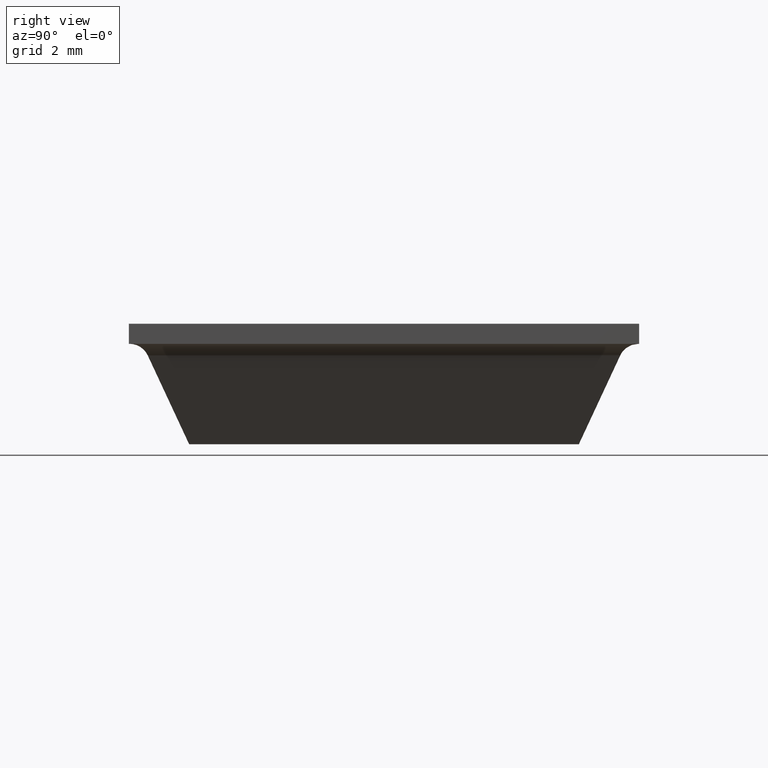
[diagram: clean part render]
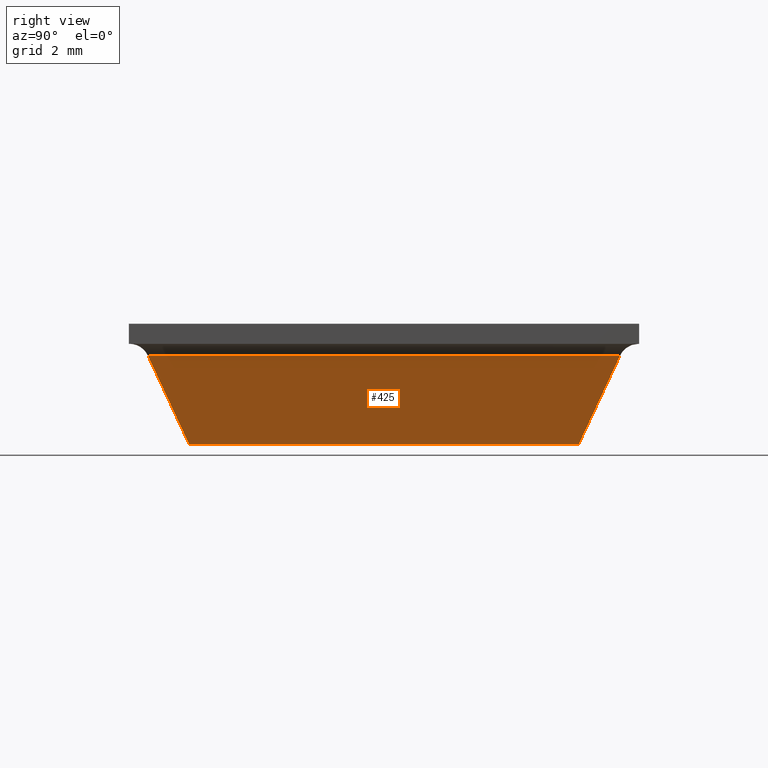
[diagram: same view with one face highlighted and labeled with its STEP entity id]
A machine part, right view. The second image highlights one B-rep face of the part: STEP entity #425.
In plain terms, the highlighted face is a freeform B-spline surface patch.
Its self-contained STEP definition (entity closure, byte-faithful):
#121=CARTESIAN_POINT('',(5.881150035810720,5.881150035810800,2.211309076796510));
#122=VERTEX_POINT('',#121);
#164=CARTESIAN_POINT('',(5.881150035810800,-5.881150035810720,2.211309076796510));
#165=VERTEX_POINT('',#164);
#216=CARTESIAN_POINT('',(5.881150035810720,5.881150035810800,2.211309076796510));
#217=CARTESIAN_POINT('',(5.881150035810800,-5.881150035810720,2.211309076796510));
#218=QUASI_UNIFORM_CURVE('',1,(#216,#217),.UNSPECIFIED.,.F.,.U.);
#219=EDGE_CURVE('',#122,#165,#218,.T.);
#229=CARTESIAN_POINT('',(4.850000000000001,-4.850000000000001,0.0));
#230=VERTEX_POINT('',#229);
#231=CARTESIAN_POINT('',(5.881150035810800,-5.881150035810720,2.211309076796510));
#232=CARTESIAN_POINT('',(4.850000000000001,-4.850000000000001,0.0));
#233=QUASI_UNIFORM_CURVE('',1,(#231,#232),.UNSPECIFIED.,.F.,.U.);
#234=EDGE_CURVE('',#165,#230,#233,.T.);
#379=CARTESIAN_POINT('',(4.850000000000001,4.850000000000001,0.0));
#380=VERTEX_POINT('',#379);
#381=CARTESIAN_POINT('',(5.881150035810720,5.881150035810800,2.211309076796510));
#382=CARTESIAN_POINT('',(4.850000000000001,4.850000000000001,0.0));
#383=QUASI_UNIFORM_CURVE('',1,(#381,#382),.UNSPECIFIED.,.F.,.U.);
#384=EDGE_CURVE('',#122,#380,#383,.T.);
#410=CARTESIAN_POINT('',(5.932656065218262,-6.468677122422708,2.321764147720240));
#411=CARTESIAN_POINT('',(4.798494025907729,-6.468677122422708,-0.110454952299864));
#412=CARTESIAN_POINT('',(5.932656065218263,6.468677227585945,2.321764147720240));
#413=CARTESIAN_POINT('',(4.798494025907729,6.468677227585945,-0.110454952299864));
#414=B_SPLINE_SURFACE_WITH_KNOTS('',1,1,((#410,#412),(#411,#413)),.UNSPECIFIED.,.F.,.F.,.U.,(2,2),(2,2),(0.0,2.683656699713217),(0.0,12.937354350008651),.UNSPECIFIED.);
#415=ORIENTED_EDGE('',*,*,#384,.F.);
#416=ORIENTED_EDGE('',*,*,#219,.T.);
#417=ORIENTED_EDGE('',*,*,#234,.T.);
#418=CARTESIAN_POINT('',(4.850000000000001,4.850000000000001,0.0));
#419=CARTESIAN_POINT('',(4.850000000000001,-4.850000000000001,0.0));
#420=QUASI_UNIFORM_CURVE('',1,(#418,#419),.UNSPECIFIED.,.F.,.U.);
#421=EDGE_CURVE('',#380,#230,#420,.T.);
#422=ORIENTED_EDGE('',*,*,#421,.F.);
#423=EDGE_LOOP('',(#415,#416,#417,#422));
#424=FACE_OUTER_BOUND('',#423,.T.);
#425=ADVANCED_FACE('',(#424),#414,.T.);